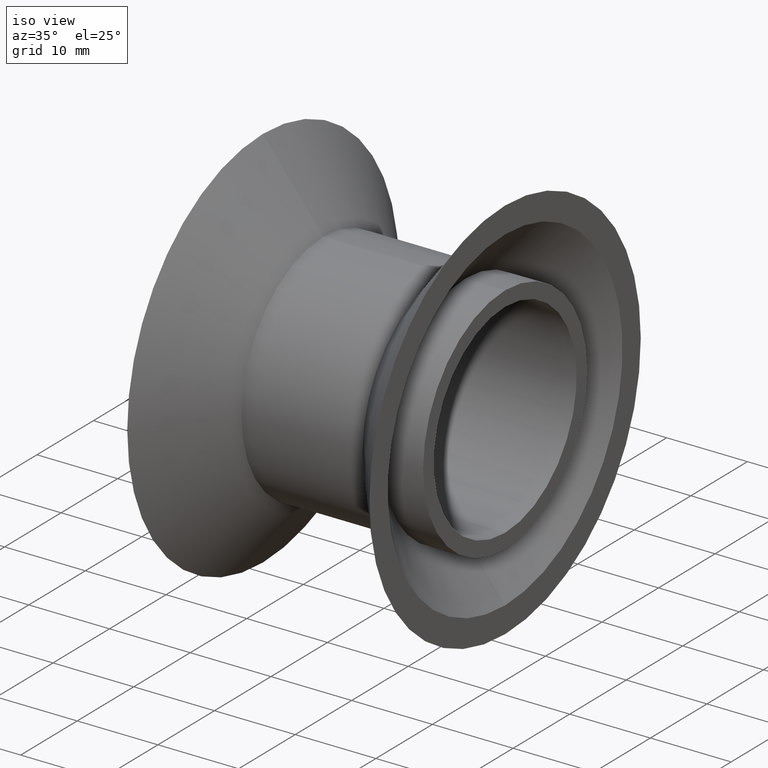
[diagram: clean part render]
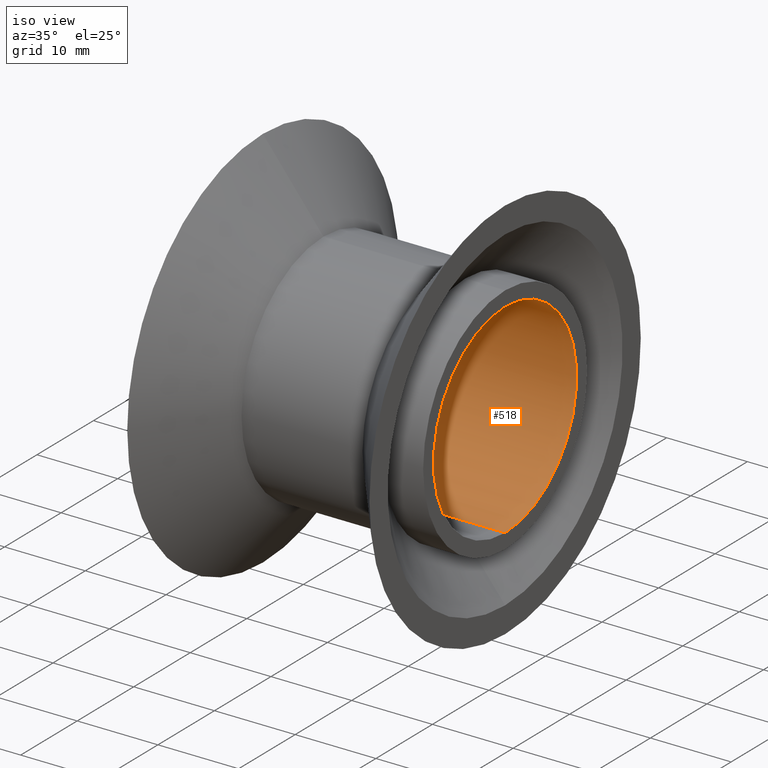
[diagram: same view with one face highlighted and labeled with its STEP entity id]
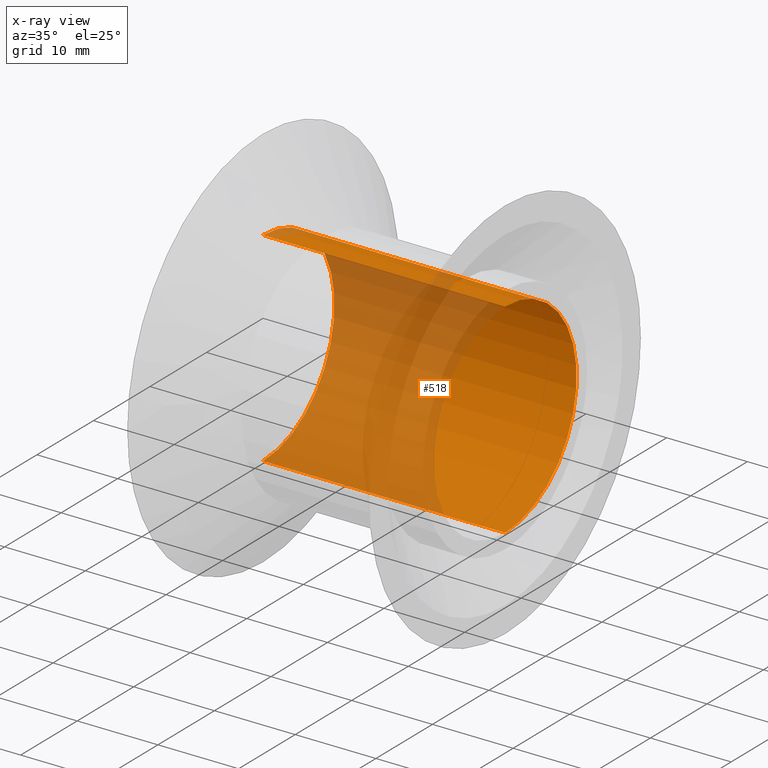
[diagram: x-ray of the same camera — body ghosted, the highlighted face saturated]
A machine part, iso view. The second image highlights one B-rep face of the part: STEP entity #518.
The next image is the same camera in x-ray: the body ghosted, the highlighted face saturated — about 53% of this face is hidden behind the body in this view.
In plain terms, the highlighted cylindrical surface (partial cylindrical patch) has radius 12.65 mm, axis along (-1, -0, -0).
Its self-contained STEP definition (entity closure, byte-faithful):
#35 = VERTEX_POINT ( 'NONE', #313 ) ;
#47 = CARTESIAN_POINT ( 'NONE',  ( 0.0000000000000000000, 1.549178200921401754E-15, -12.65000000000000036 ) ) ;
#60 = CARTESIAN_POINT ( 'NONE',  ( -15.00000000000000000, 0.0000000000000000000, 0.0000000000000000000 ) ) ;
#76 = EDGE_CURVE ( 'NONE', #476, #35, #347, .T. ) ;
#84 = EDGE_CURVE ( 'NONE', #35, #448, #543, .T. ) ;
#88 = DIRECTION ( 'NONE',  ( -1.000000000000000000, -0.0000000000000000000, -0.0000000000000000000 ) ) ;
#154 = DIRECTION ( 'NONE',  ( 0.0000000000000000000, 0.0000000000000000000, 1.000000000000000000 ) ) ;
#157 = ORIENTED_EDGE ( 'NONE', *, *, #84, .F. ) ;
#168 = LINE ( 'NONE', #547, #254 ) ;
#171 = AXIS2_PLACEMENT_3D ( 'NONE', #60, #375, #154 ) ;
#186 = DIRECTION ( 'NONE',  ( -1.000000000000000000, -0.0000000000000000000, -0.0000000000000000000 ) ) ;
#217 = EDGE_LOOP ( 'NONE', ( #157, #406, #222, #407 ) ) ;
#222 = ORIENTED_EDGE ( 'NONE', *, *, #248, .T. ) ;
#228 = AXIS2_PLACEMENT_3D ( 'NONE', #528, #88, #532 ) ;
#247 = DIRECTION ( 'NONE',  ( 0.0000000000000000000, 0.0000000000000000000, 1.000000000000000000 ) ) ;
#248 = EDGE_CURVE ( 'NONE', #476, #572, #168, .T. ) ;
#250 = CARTESIAN_POINT ( 'NONE',  ( 15.00000000000000000, 0.0000000000000000000, 12.65000000000000036 ) ) ;
#254 = VECTOR ( 'NONE', #186, 1000.000000000000000 ) ;
#292 = CARTESIAN_POINT ( 'NONE',  ( -15.00000000000000000, 0.0000000000000000000, 12.65000000000000036 ) ) ;
#313 = CARTESIAN_POINT ( 'NONE',  ( 15.00000000000000000, 1.549178200921401754E-15, -12.65000000000000036 ) ) ;
#337 = CARTESIAN_POINT ( 'NONE',  ( 0.0000000000000000000, 0.0000000000000000000, 0.0000000000000000000 ) ) ;
#346 = AXIS2_PLACEMENT_3D ( 'NONE', #337, #562, #247 ) ;
#347 = CIRCLE ( 'NONE', #228, 12.65000000000000036 ) ;
#375 = DIRECTION ( 'NONE',  ( -1.000000000000000000, -0.0000000000000000000, -0.0000000000000000000 ) ) ;
#406 = ORIENTED_EDGE ( 'NONE', *, *, #76, .F. ) ;
#407 = ORIENTED_EDGE ( 'NONE', *, *, #446, .T. ) ;
#433 = VECTOR ( 'NONE', #483, 1000.000000000000000 ) ;
#446 = EDGE_CURVE ( 'NONE', #572, #448, #450, .T. ) ;
#448 = VERTEX_POINT ( 'NONE', #502 ) ;
#450 = CIRCLE ( 'NONE', #171, 12.65000000000000036 ) ;
#457 = CYLINDRICAL_SURFACE ( 'NONE', #346, 12.65000000000000036 ) ;
#476 = VERTEX_POINT ( 'NONE', #250 ) ;
#483 = DIRECTION ( 'NONE',  ( -1.000000000000000000, -0.0000000000000000000, -0.0000000000000000000 ) ) ;
#502 = CARTESIAN_POINT ( 'NONE',  ( -15.00000000000000000, 1.549178200921401754E-15, -12.65000000000000036 ) ) ;
#518 = ADVANCED_FACE ( 'NONE', ( #561 ), #457, .F. ) ;
#528 = CARTESIAN_POINT ( 'NONE',  ( 15.00000000000000000, 0.0000000000000000000, 0.0000000000000000000 ) ) ;
#532 = DIRECTION ( 'NONE',  ( 0.0000000000000000000, 0.0000000000000000000, 1.000000000000000000 ) ) ;
#543 = LINE ( 'NONE', #47, #433 ) ;
#547 = CARTESIAN_POINT ( 'NONE',  ( 0.0000000000000000000, 0.0000000000000000000, 12.65000000000000036 ) ) ;
#561 = FACE_OUTER_BOUND ( 'NONE', #217, .T. ) ;
#562 = DIRECTION ( 'NONE',  ( -1.000000000000000000, -0.0000000000000000000, -0.0000000000000000000 ) ) ;
#572 = VERTEX_POINT ( 'NONE', #292 ) ;